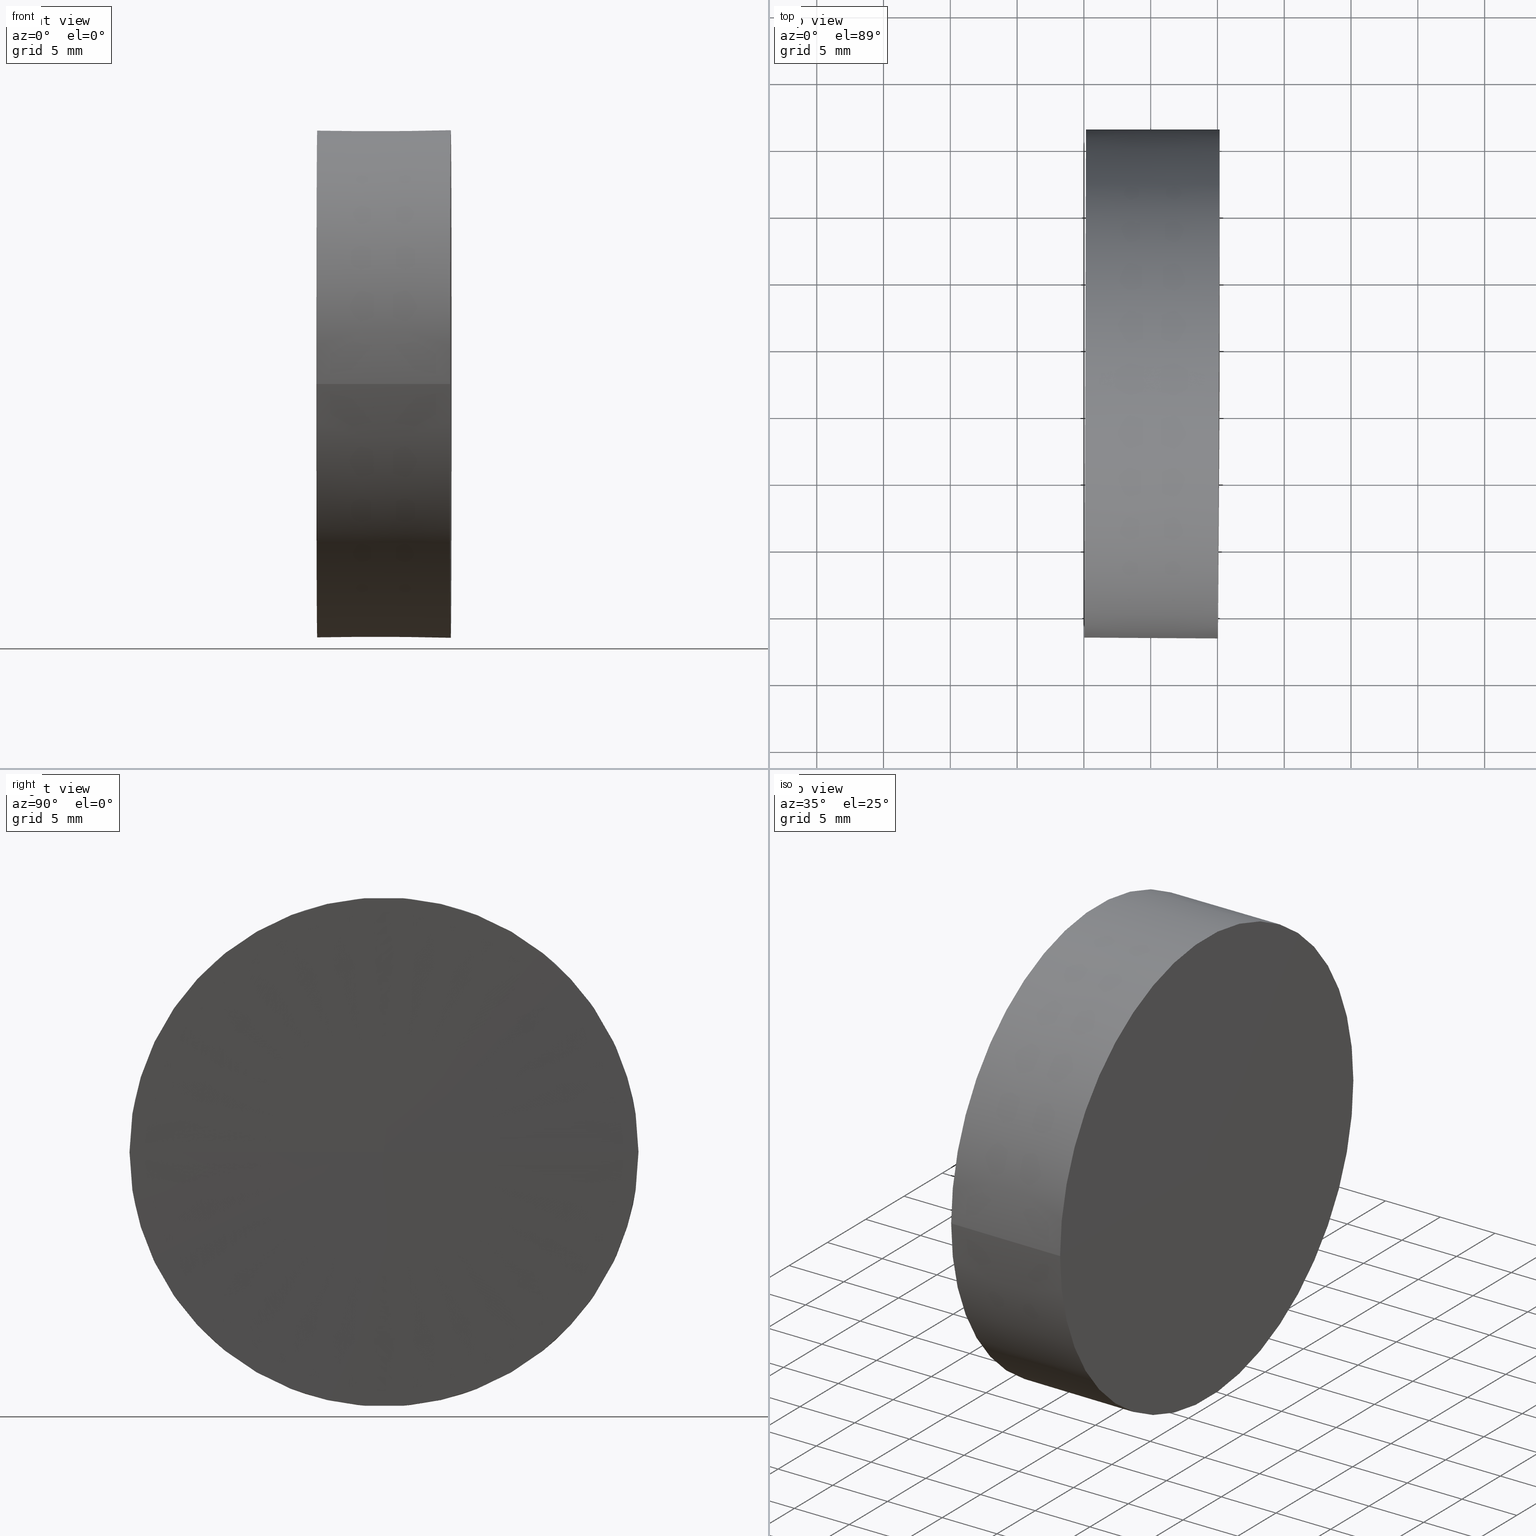
[diagram: canonical four-view strip — front | top / right | iso, engineering-drawing reading convention]
A machine part, canonical four-view strip (front | top / right | iso — engineering-drawing reading convention). The complete STEP part file that produces these views, byte-faithful:
ISO-10303-21;
HEADER;
FILE_DESCRIPTION (( 'STEP AP214' ),
    '1' );
FILE_NAME ('260075.STEP',
    '2019-07-16T03:43:23',
    ( '' ),
    ( '' ),
    'SwSTEP 2.0',
    'SolidWorks 2016',
    '' );
FILE_SCHEMA (( 'AUTOMOTIVE_DESIGN' ));
ENDSEC;

DATA;
#1 = DIRECTION ( 'NONE',  ( -0.003255957023717566800, -0.9999946993578814300, 0.0000000000000000000 ) ) ;
#2 = EDGE_CURVE ( 'NONE', #54, #84, #181, .T. ) ;
#3 = FILL_AREA_STYLE ('',( #50 ) ) ;
#4 = FACE_OUTER_BOUND ( 'NONE', #78, .T. ) ;
#5 = DIRECTION ( 'NONE',  ( -0.003255957023717929400, -0.9999946993578815400, 0.0000000000000000000 ) ) ;
#6 = AXIS2_PLACEMENT_3D ( 'NONE', #134, #162, #93 ) ;
#7 = MECHANICAL_DESIGN_GEOMETRIC_PRESENTATION_REPRESENTATION (  '', ( #23 ), #15 ) ;
#8 = ORIENTED_EDGE ( 'NONE', *, *, #110, .T. ) ;
#9 = ORIENTED_EDGE ( 'NONE', *, *, #40, .F. ) ;
#10 = PRODUCT_DEFINITION_CONTEXT ( 'detailed design', #104, 'design' ) ;
#11 = CONICAL_SURFACE ( 'NONE', #120, 0.02005962748784459100, 1.567540364018758600 ) ;
#12 = EDGE_CURVE ( 'NONE', #84, #34, #81, .T. ) ;
#13 = VERTEX_POINT ( 'NONE', #44 ) ;
#14 = EDGE_CURVE ( 'NONE', #13, #175, #136, .T. ) ;
#15 =( GEOMETRIC_REPRESENTATION_CONTEXT ( 3 ) GLOBAL_UNCERTAINTY_ASSIGNED_CONTEXT ( ( #106 ) ) GLOBAL_UNIT_ASSIGNED_CONTEXT ( ( #25, #67, #188 ) ) REPRESENTATION_CONTEXT ( 'NONE', 'WORKASPACE' ) );
#16 = CARTESIAN_POINT ( 'NONE',  ( 270.1615312381603600, 77.24056043020593200, 0.0000000000000000000 ) ) ;
#17 = CARTESIAN_POINT ( 'NONE',  ( 270.1617025640068200, 96.29317934901541800, 0.0000000000000000000 ) ) ;
#18 = CARTESIAN_POINT ( 'NONE',  ( 0.0000000000000000000, 0.0000000000000000000, 0.0000000000000000000 ) ) ;
#19 = SURFACE_STYLE_USAGE ( .BOTH. , #187 ) ;
#20 = EDGE_LOOP ( 'NONE', ( #37, #32, #151 ) ) ;
#21 = DIRECTION ( 'NONE',  ( 1.000000000000000000, 0.0000000000000000000, 0.0000000000000000000 ) ) ;
#22 = DIRECTION ( 'NONE',  ( -0.003255957023403785300, -0.9999946993578825400, 0.0000000000000000000 ) ) ;
#23 = STYLED_ITEM ( 'NONE', ( #28 ), #38 ) ;
#24 = EDGE_CURVE ( 'NONE', #34, #175, #39, .T. ) ;
#25 =( LENGTH_UNIT ( ) NAMED_UNIT ( * ) SI_UNIT ( .MILLI., .METRE. ) );
#26 = ORIENTED_EDGE ( 'NONE', *, *, #123, .T. ) ;
#27 = EDGE_LOOP ( 'NONE', ( #153, #168, #182 ) ) ;
#28 = PRESENTATION_STYLE_ASSIGNMENT (( #87 ) ) ;
#29 = PRODUCT_DEFINITION_FORMATION_WITH_SPECIFIED_SOURCE ( '�κ�', '', #88, .NOT_KNOWN. ) ;
#30 = ORIENTED_EDGE ( 'NONE', *, *, #12, .F. ) ;
#31 = STYLED_ITEM ( 'NONE', ( #79 ), #139 ) ;
#32 = ORIENTED_EDGE ( 'NONE', *, *, #40, .T. ) ;
#33 = DIRECTION ( 'NONE',  ( -1.795438797635994800E-016, 1.000000000000000000, 1.224640307732949200E-016 ) ) ;
#34 = VERTEX_POINT ( 'NONE', #155 ) ;
#35 = AXIS2_PLACEMENT_3D ( 'NONE', #62, #66, #158 ) ;
#36 = VECTOR ( 'NONE', #105, 1000.000000000000200 ) ;
#37 = ORIENTED_EDGE ( 'NONE', *, *, #2, .F. ) ;
#38 = ADVANCED_BREP_SHAPE_REPRESENTATION ( '260075', ( #139, #174 ), #130 ) ;
#39 = CIRCLE ( 'NONE', #178, 19.05251848552478600 ) ;
#40 = EDGE_CURVE ( 'NONE', #54, #13, #53, .T. ) ;
#41 = CONICAL_SURFACE ( 'NONE', #127, 0.05261919772502674600, 1.567540364018278300 ) ;
#42 = ADVANCED_FACE ( 'NONE', ( #150 ), #122, .T. ) ;
#43 = AXIS2_PLACEMENT_3D ( 'NONE', #61, #100, #71 ) ;
#44 = CARTESIAN_POINT ( 'NONE',  ( 260.0378462263646500, 58.25346315443084700, 2.329273180552113800E-015 ) ) ;
#45 = CARTESIAN_POINT ( 'NONE',  ( 270.0376342012418700, 58.18834435912974400, 2.333260577899371400E-015 ) ) ;
#46 = DIRECTION ( 'NONE',  ( 1.000000000000000000, -7.502679033599689500E-017, 0.0000000000000000000 ) ) ;
#47 = ORIENTED_EDGE ( 'NONE', *, *, #110, .F. ) ;
#48 = DIRECTION ( 'NONE',  ( -0.9999946993578815400, 0.003255957023718254200, -0.0000000000000000000 ) ) ;
#49 = ORIENTED_EDGE ( 'NONE', *, *, #123, .F. ) ;
#50 = FILL_AREA_STYLE_COLOUR ( '', #126 ) ;
#51 = LINE ( 'NONE', #133, #152 ) ;
#52 = CARTESIAN_POINT ( 'NONE',  ( 260.0997743951857000, 77.27332125172313200, 0.0000000000000000000 ) ) ;
#53 = LINE ( 'NONE', #172, #95 ) ;
#54 = VERTEX_POINT ( 'NONE', #98 ) ;
#55 = VECTOR ( 'NONE', #46, 1000.000000000000000 ) ;
#56 = ADVANCED_FACE ( 'NONE', ( #83 ), #11, .F. ) ;
#57 = DIRECTION ( 'NONE',  ( -0.9999946993578815400, 0.003255957023718254200, -0.0000000000000000000 ) ) ;
#58 = PRESENTATION_LAYER_ASSIGNMENT (  '', '', ( #31 ) ) ;
#59 = CIRCLE ( 'NONE', #112, 19.01995891528760300 ) ;
#60 = CARTESIAN_POINT ( 'NONE',  ( 260.1617025640067600, 77.29317934901541800, 2.456595859507714400E-018 ) ) ;
#61 = CARTESIAN_POINT ( 'NONE',  ( 270.0996683826243200, 77.24076185407258800, 0.0000000000000000000 ) ) ;
#62 = CARTESIAN_POINT ( 'NONE',  ( 270.1615312381603600, 77.24056043020593200, 0.0000000000000000000 ) ) ;
#63 = ORIENTED_EDGE ( 'NONE', *, *, #14, .T. ) ;
#64 = FACE_OUTER_BOUND ( 'NONE', #27, .T. ) ;
#65 = CARTESIAN_POINT ( 'NONE',  ( 260.0997743951857000, 77.27332125172313200, 0.0000000000000000000 ) ) ;
#66 = DIRECTION ( 'NONE',  ( -0.9999946993578815400, 0.003255957023718254200, -0.0000000000000000000 ) ) ;
#67 =( NAMED_UNIT ( * ) PLANE_ANGLE_UNIT ( ) SI_UNIT ( $, .RADIAN. ) );
#68 = EDGE_CURVE ( 'NONE', #138, #34, #51, .T. ) ;
#69 = ORIENTED_EDGE ( 'NONE', *, *, #24, .T. ) ;
#70 = DIRECTION ( 'NONE',  ( -0.9999946993578815400, 0.003255957023718254200, -0.0000000000000000000 ) ) ;
#71 = DIRECTION ( 'NONE',  ( 0.003255957023717566800, 0.9999946993578814300, 0.0000000000000000000 ) ) ;
#72 = UNCERTAINTY_MEASURE_WITH_UNIT (LENGTH_MEASURE( 1.000000000000000100E-005 ), #145, 'distance_accuracy_value', 'NONE');
#73 = DIRECTION ( 'NONE',  ( -0.003255957023717929400, -0.9999946993578815400, 0.0000000000000000000 ) ) ;
#74 = EDGE_LOOP ( 'NONE', ( #124, #47, #131, #69 ) ) ;
#75 = APPLICATION_PROTOCOL_DEFINITION ( 'draft international standard', 'automotive_design', 1998, #104 ) ;
#76 = CARTESIAN_POINT ( 'NONE',  ( 270.1617025640068200, 77.24055987237336800, 0.0000000000000000000 ) ) ;
#77 =( NAMED_UNIT ( * ) SI_UNIT ( $, .STERADIAN. ) SOLID_ANGLE_UNIT ( ) );
#78 = EDGE_LOOP ( 'NONE', ( #9, #82, #8 ) ) ;
#79 = PRESENTATION_STYLE_ASSIGNMENT (( #19 ) ) ;
#80 = FILL_AREA_STYLE_COLOUR ( '', #117 ) ;
#81 = LINE ( 'NONE', #17, #55 ) ;
#82 = ORIENTED_EDGE ( 'NONE', *, *, #2, .T. ) ;
#83 = FACE_OUTER_BOUND ( 'NONE', #20, .T. ) ;
#84 = VERTEX_POINT ( 'NONE', #102 ) ;
#85 = ADVANCED_FACE ( 'NONE', ( #154 ), #41, .T. ) ;
#86 = CONICAL_SURFACE ( 'NONE', #146, 0.02005962748784459100, 1.567540364018758600 ) ;
#87 = SURFACE_STYLE_USAGE ( .BOTH. , #107 ) ;
#88 = PRODUCT ( '260075', '260075', '', ( #132 ) ) ;
#89 = CLOSED_SHELL ( 'NONE', ( #113, #141, #85, #156, #42, #56 ) ) ;
#90 = EDGE_LOOP ( 'NONE', ( #166, #63, #26, #30 ) ) ;
#91 = DIRECTION ( 'NONE',  ( -0.9999946993578815400, 0.003255957023718254200, -0.0000000000000000000 ) ) ;
#92 = CIRCLE ( 'NONE', #157, 19.05251848552478600 ) ;
#93 = DIRECTION ( 'NONE',  ( 0.003255957023717566800, 0.9999946993578814300, 0.0000000000000000000 ) ) ;
#94 = PRODUCT_DEFINITION_SHAPE ( 'NONE', 'NONE',  #164 ) ;
#95 = VECTOR ( 'NONE', #170, 1000.000000000000100 ) ;
#96 = ORIENTED_EDGE ( 'NONE', *, *, #167, .F. ) ;
#97 = CONICAL_SURFACE ( 'NONE', #6, 19.05251848552478600, 0.003255962776618021900 ) ;
#98 = CARTESIAN_POINT ( 'NONE',  ( 260.1617025640067600, 77.27311961519809800, 0.0000000000000000000 ) ) ;
#99 = CARTESIAN_POINT ( 'NONE',  ( 260.1616372507217500, 77.27311982785647600, 0.0000000000000000000 ) ) ;
#100 = DIRECTION ( 'NONE',  ( 0.9999946993578815400, -0.003255957023718254200, 0.0000000000000000000 ) ) ;
#101 = FACE_OUTER_BOUND ( 'NONE', #90, .T. ) ;
#102 = CARTESIAN_POINT ( 'NONE',  ( 260.1617025640067600, 96.29317934901541800, 0.0000000000000000000 ) ) ;
#103 = CARTESIAN_POINT ( 'NONE',  ( 270.1613599123139700, 77.18794151139643100, 0.0000000000000000000 ) ) ;
#104 = APPLICATION_CONTEXT ( 'automotive_design' ) ;
#105 = DIRECTION ( 'NONE',  ( -0.006511879530110813700, -0.9999787974877193400, 0.0000000000000000000 ) ) ;
#106 = UNCERTAINTY_MEASURE_WITH_UNIT (LENGTH_MEASURE( 1.000000000000000100E-005 ), #25, 'distance_accuracy_value', 'NONE');
#107 = SURFACE_SIDE_STYLE ('',( #119 ) ) ;
#108 = PRESENTATION_LAYER_ASSIGNMENT (  '', '', ( #23 ) ) ;
#109 = CARTESIAN_POINT ( 'NONE',  ( 270.0376342012418100, 58.18834435912466300, 0.0000000000000000000 ) ) ;
#110 = EDGE_CURVE ( 'NONE', #84, #13, #114, .T. ) ;
#111 = VECTOR ( 'NONE', #186, 1000.000000000000000 ) ;
#112 = AXIS2_PLACEMENT_3D ( 'NONE', #52, #147, #5 ) ;
#113 = ADVANCED_FACE ( 'NONE', ( #4 ), #86, .F. ) ;
#114 = CIRCLE ( 'NONE', #140, 19.01995891528760300 ) ;
#115 = APPLICATION_CONTEXT ( 'automotive_design' ) ;
#116 = DIRECTION ( 'NONE',  ( -0.9999946993578815400, 0.003255957023718254200, -0.0000000000000000000 ) ) ;
#117 = COLOUR_RGB ( '',1.000000000000000000, 1.000000000000000000, 1.000000000000000000 ) ;
#118 = DIRECTION ( 'NONE',  ( 0.0000000000000000000, 0.0000000000000000000, 1.000000000000000000 ) ) ;
#119 = SURFACE_STYLE_FILL_AREA ( #148 ) ;
#120 = AXIS2_PLACEMENT_3D ( 'NONE', #99, #70, #169 ) ;
#121 = MECHANICAL_DESIGN_GEOMETRIC_PRESENTATION_REPRESENTATION (  '', ( #31 ), #149 ) ;
#122 = CONICAL_SURFACE ( 'NONE', #43, 19.05251848552478600, 0.003255962776618021900 ) ;
#123 = EDGE_CURVE ( 'NONE', #175, #34, #92, .T. ) ;
#124 = ORIENTED_EDGE ( 'NONE', *, *, #14, .F. ) ;
#125 = ORIENTED_EDGE ( 'NONE', *, *, #68, .T. ) ;
#126 = COLOUR_RGB ( '',1.000000000000000000, 1.000000000000000000, 1.000000000000000000 ) ;
#127 = AXIS2_PLACEMENT_3D ( 'NONE', #16, #116, #22 ) ;
#128 = LINE ( 'NONE', #103, #36 ) ;
#129 = DIRECTION ( 'NONE',  ( -0.003255957023238136500, -0.9999946993578828800, 0.0000000000000000000 ) ) ;
#130 =( GEOMETRIC_REPRESENTATION_CONTEXT ( 3 ) GLOBAL_UNCERTAINTY_ASSIGNED_CONTEXT ( ( #171 ) ) GLOBAL_UNIT_ASSIGNED_CONTEXT ( ( #135, #137, #163 ) ) REPRESENTATION_CONTEXT ( 'NONE', 'WORKASPACE' ) );
#131 = ORIENTED_EDGE ( 'NONE', *, *, #12, .T. ) ;
#132 = PRODUCT_CONTEXT ( 'NONE', #115, 'mechanical' ) ;
#133 = CARTESIAN_POINT ( 'NONE',  ( 270.1617025640068200, 77.29317934901541800, 6.443993206765571700E-018 ) ) ;
#134 = CARTESIAN_POINT ( 'NONE',  ( 270.0996683826243200, 77.24076185407258800, 0.0000000000000000000 ) ) ;
#135 =( LENGTH_UNIT ( ) NAMED_UNIT ( * ) SI_UNIT ( .MILLI., .METRE. ) );
#136 = LINE ( 'NONE', #45, #179 ) ;
#137 =( NAMED_UNIT ( * ) PLANE_ANGLE_UNIT ( ) SI_UNIT ( $, .RADIAN. ) );
#138 = VERTEX_POINT ( 'NONE', #76 ) ;
#139 = MANIFOLD_SOLID_BREP ( '��ת1', #89 ) ;
#140 = AXIS2_PLACEMENT_3D ( 'NONE', #65, #48, #73 ) ;
#141 = ADVANCED_FACE ( 'NONE', ( #101 ), #97, .T. ) ;
#142 = DIRECTION ( 'NONE',  ( -0.003255957023717566800, -0.9999946993578814300, 0.0000000000000000000 ) ) ;
#143 = DIRECTION ( 'NONE',  ( 0.9999787974877193400, -0.006511879530110559500, 3.987397347257810100E-019 ) ) ;
#144 = CARTESIAN_POINT ( 'NONE',  ( 270.0996683826243200, 77.24076185407258800, 0.0000000000000000000 ) ) ;
#145 =( LENGTH_UNIT ( ) NAMED_UNIT ( * ) SI_UNIT ( .MILLI., .METRE. ) );
#146 = AXIS2_PLACEMENT_3D ( 'NONE', #160, #176, #129 ) ;
#147 = DIRECTION ( 'NONE',  ( -0.9999946993578815400, 0.003255957023718254200, -0.0000000000000000000 ) ) ;
#148 = FILL_AREA_STYLE ('',( #80 ) ) ;
#149 =( GEOMETRIC_REPRESENTATION_CONTEXT ( 3 ) GLOBAL_UNCERTAINTY_ASSIGNED_CONTEXT ( ( #72 ) ) GLOBAL_UNIT_ASSIGNED_CONTEXT ( ( #145, #177, #77 ) ) REPRESENTATION_CONTEXT ( 'NONE', 'WORKASPACE' ) );
#150 = FACE_OUTER_BOUND ( 'NONE', #74, .T. ) ;
#151 = ORIENTED_EDGE ( 'NONE', *, *, #185, .T. ) ;
#152 = VECTOR ( 'NONE', #33, 1000.000000000000000 ) ;
#153 = ORIENTED_EDGE ( 'NONE', *, *, #68, .F. ) ;
#154 = FACE_OUTER_BOUND ( 'NONE', #173, .T. ) ;
#155 = CARTESIAN_POINT ( 'NONE',  ( 270.1617025640068200, 96.29317934901035900, 2.333260577898748200E-015 ) ) ;
#156 = ADVANCED_FACE ( 'NONE', ( #64 ), #165, .T. ) ;
#157 = AXIS2_PLACEMENT_3D ( 'NONE', #144, #91, #1 ) ;
#158 = DIRECTION ( 'NONE',  ( -0.003255957023403785300, -0.9999946993578825400, 0.0000000000000000000 ) ) ;
#159 = APPLICATION_PROTOCOL_DEFINITION ( 'draft international standard', 'automotive_design', 1998, #115 ) ;
#160 = CARTESIAN_POINT ( 'NONE',  ( 260.1616372507217500, 77.27311982785647600, 0.0000000000000000000 ) ) ;
#161 = SURFACE_STYLE_FILL_AREA ( #3 ) ;
#162 = DIRECTION ( 'NONE',  ( 0.9999946993578815400, -0.003255957023718254200, 0.0000000000000000000 ) ) ;
#163 =( NAMED_UNIT ( * ) SI_UNIT ( $, .STERADIAN. ) SOLID_ANGLE_UNIT ( ) );
#164 = PRODUCT_DEFINITION ( 'δ֪', '', #29, #10 ) ;
#165 = CONICAL_SURFACE ( 'NONE', #35, 0.05261919772502674600, 1.567540364018278300 ) ;
#166 = ORIENTED_EDGE ( 'NONE', *, *, #185, .F. ) ;
#167 = EDGE_CURVE ( 'NONE', #138, #175, #128, .T. ) ;
#168 = ORIENTED_EDGE ( 'NONE', *, *, #167, .T. ) ;
#169 = DIRECTION ( 'NONE',  ( -0.003255957023238136500, -0.9999946993578828800, 0.0000000000000000000 ) ) ;
#170 = DIRECTION ( 'NONE',  ( -0.006511879529630542500, -0.9999787974877225600, 0.0000000000000000000 ) ) ;
#171 = UNCERTAINTY_MEASURE_WITH_UNIT (LENGTH_MEASURE( 1.000000000000000100E-005 ), #135, 'distance_accuracy_value', 'NONE');
#172 = CARTESIAN_POINT ( 'NONE',  ( 260.1615719374367500, 77.25306030669753500, 0.0000000000000000000 ) ) ;
#173 = EDGE_LOOP ( 'NONE', ( #96, #125, #49 ) ) ;
#174 = AXIS2_PLACEMENT_3D ( 'NONE', #18, #118, #21 ) ;
#175 = VERTEX_POINT ( 'NONE', #109 ) ;
#176 = DIRECTION ( 'NONE',  ( -0.9999946993578815400, 0.003255957023718254200, -0.0000000000000000000 ) ) ;
#177 =( NAMED_UNIT ( * ) PLANE_ANGLE_UNIT ( ) SI_UNIT ( $, .RADIAN. ) );
#178 = AXIS2_PLACEMENT_3D ( 'NONE', #184, #57, #142 ) ;
#179 = VECTOR ( 'NONE', #143, 1000.000000000000200 ) ;
#180 = PRODUCT_RELATED_PRODUCT_CATEGORY ( 'part', '', ( #88 ) ) ;
#181 = LINE ( 'NONE', #60, #111 ) ;
#182 = ORIENTED_EDGE ( 'NONE', *, *, #24, .F. ) ;
#183 = SHAPE_DEFINITION_REPRESENTATION ( #94, #38 ) ;
#184 = CARTESIAN_POINT ( 'NONE',  ( 270.0996683826243200, 77.24076185407258800, 0.0000000000000000000 ) ) ;
#185 = EDGE_CURVE ( 'NONE', #13, #84, #59, .T. ) ;
#186 = DIRECTION ( 'NONE',  ( 4.801029365730790200E-013, 1.000000000000000000, 1.224640307732951100E-016 ) ) ;
#187 = SURFACE_SIDE_STYLE ('',( #161 ) ) ;
#188 =( NAMED_UNIT ( * ) SI_UNIT ( $, .STERADIAN. ) SOLID_ANGLE_UNIT ( ) );
ENDSEC;
END-ISO-10303-21;
